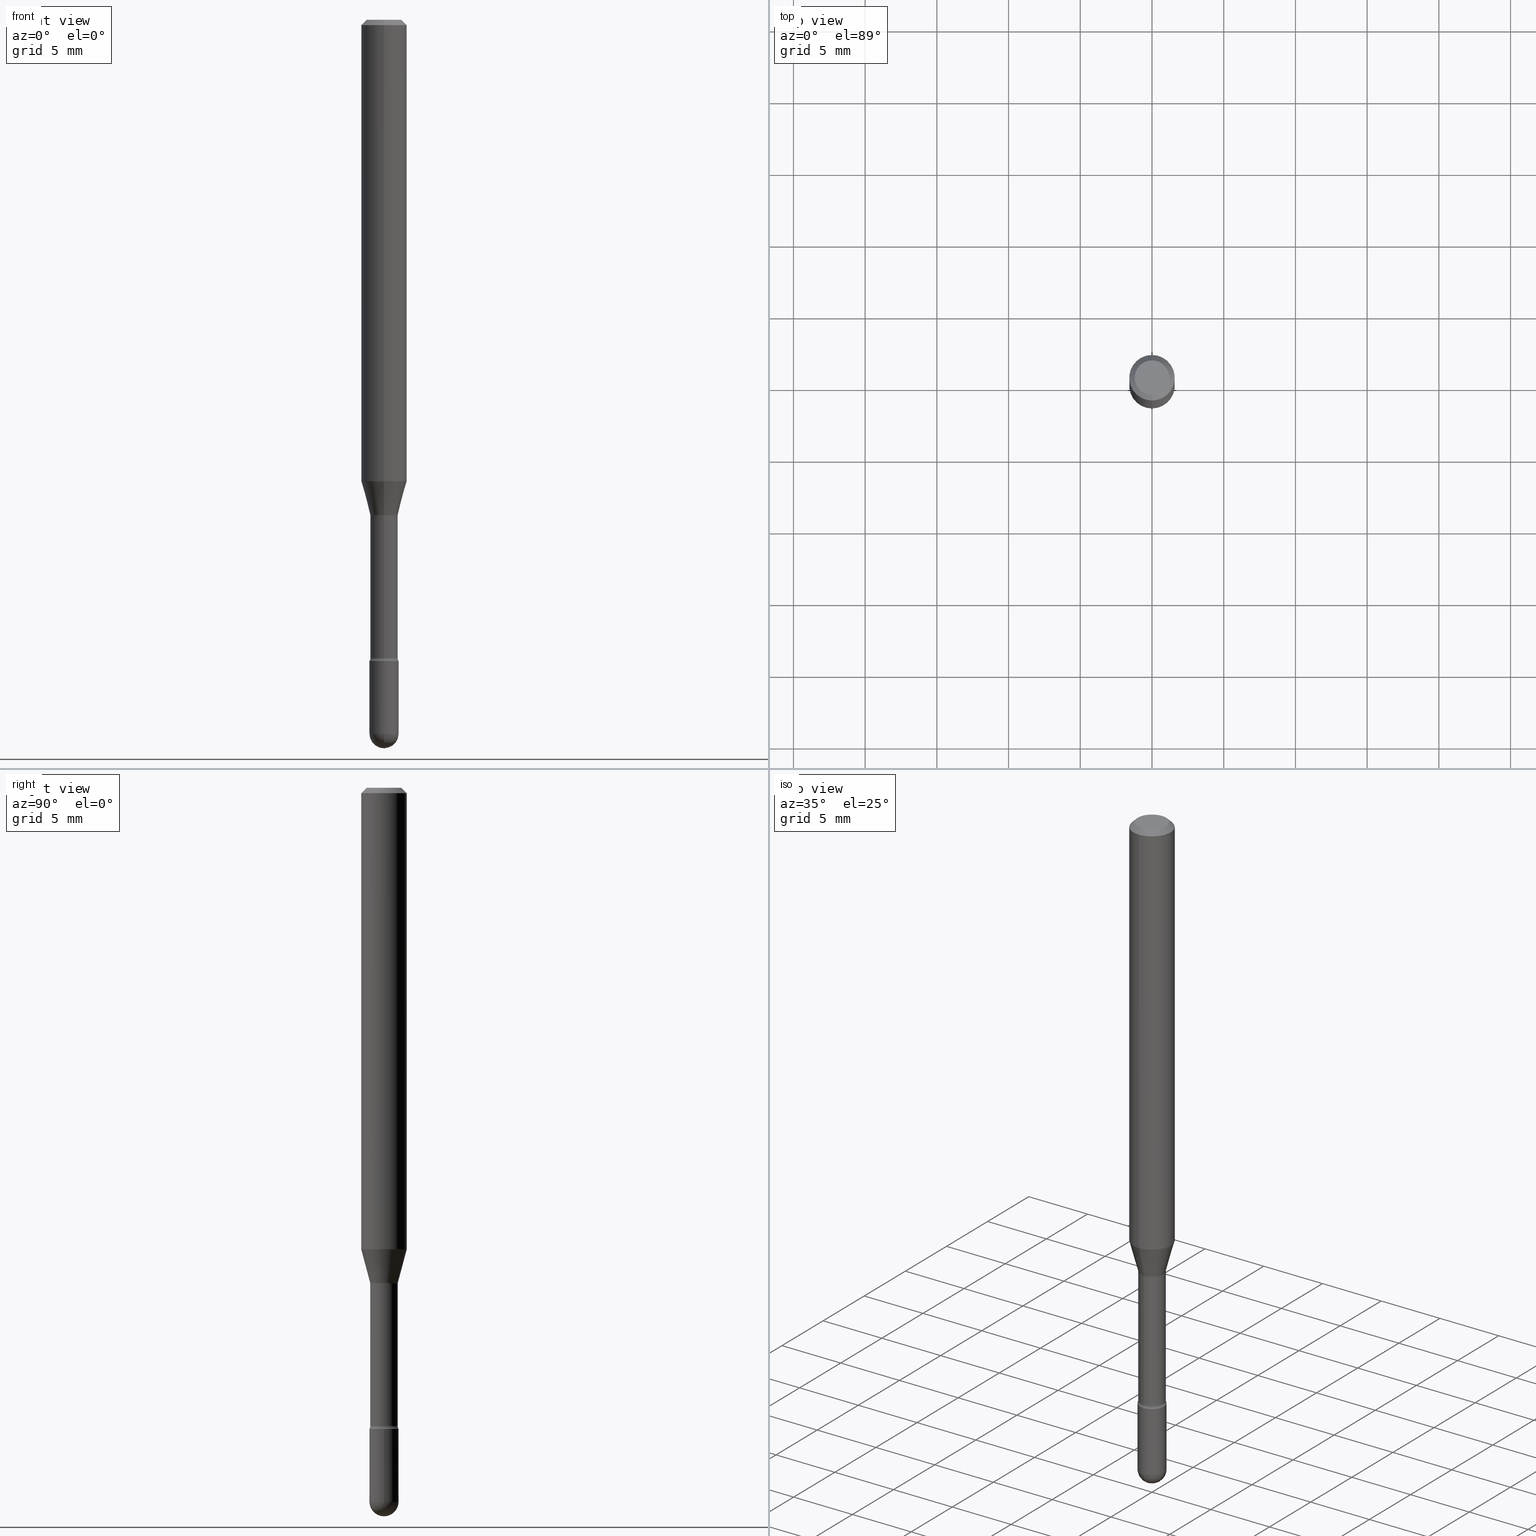
[diagram: canonical four-view strip — front | top / right | iso, engineering-drawing reading convention]
A machine part, canonical four-view strip (front | top / right | iso — engineering-drawing reading convention). The complete STEP part file that produces these views, byte-faithful:
ISO-10303-21;
HEADER;
FILE_DESCRIPTION (( 'STEP AP203' ),
    '1' );
FILE_NAME ('04556.STEP',
    '2024-04-09T21:53:44',
    ( '' ),
    ( '' ),
    'SwSTEP 2.0',
    'SolidWorks 2023',
    '' );
FILE_SCHEMA (( 'CONFIG_CONTROL_DESIGN' ));
ENDSEC;

DATA;
#1 = AXIS2_PLACEMENT_3D ( 'NONE', #375, #66, #20 ) ;
#2 = DIRECTION ( 'NONE',  ( -2.445468806185136597E-29, 3.491481338843145583E-15, 1.000000000000000000 ) ) ;
#3 = ORIENTED_EDGE ( 'NONE', *, *, #394, .T. ) ;
#4 = APPROVAL ( #424, 'UNSPECIFIED' ) ;
#5 = APPROVAL_DATE_TIME ( #391, #67 ) ;
#6 = DIRECTION ( 'NONE',  ( -6.982962677686265922E-15, -1.000000000000000000, 6.829619984160658243E-15 ) ) ;
#7 = ORIENTED_EDGE ( 'NONE', *, *, #396, .F. ) ;
#8 = DIRECTION ( 'NONE',  ( -2.445487129029545488E-29, 3.491455099487080109E-15, 1.000000000000000000 ) ) ;
#9 = EDGE_CURVE ( 'NONE', #51, #139, #204, .T. ) ;
#10 = DIRECTION ( 'NONE',  ( 6.982962677686265922E-15, 1.000000000000000000, -6.829619984160649566E-15 ) ) ;
#11 = VECTOR ( 'NONE', #192, 39.37007874015748143 ) ;
#12 = ORIENTED_EDGE ( 'NONE', *, *, #318, .T. ) ;
#13 = CARTESIAN_POINT ( 'NONE',  ( 4.440892098500937762E-16, 0.06249999999999993755, -0.01500000000000030129 ) ) ;
#14 = VECTOR ( 'NONE', #8, 39.37007874015748143 ) ;
#15 = ORIENTED_EDGE ( 'NONE', *, *, #109, .T. ) ;
#16 = FACE_OUTER_BOUND ( 'NONE', #376, .T. ) ;
#17 = EDGE_CURVE ( 'NONE', #18, #115, #228, .T. ) ;
#18 = VERTEX_POINT ( 'NONE', #257 ) ;
#19 = CIRCLE ( 'NONE', #459, 0.04000000000000000083 ) ;
#20 = DIRECTION ( 'NONE',  ( -6.982962677686267499E-15, -1.000000000000000000, 3.491455099487080898E-15 ) ) ;
#21 = CIRCLE ( 'NONE', #234, 0.03760000000000007087 ) ;
#22 = VERTEX_POINT ( 'NONE', #463 ) ;
#23 = ADVANCED_FACE ( 'NONE', ( #433 ), #302, .T. ) ;
#24 = CARTESIAN_POINT ( 'NONE',  ( -2.842170943039922556E-16, -0.04000000000000686340, -1.959999999999999520 ) ) ;
#25 = ORIENTED_EDGE ( 'NONE', *, *, #312, .T. ) ;
#26 = VECTOR ( 'NONE', #31, 39.37007874015748143 ) ;
#27 = CARTESIAN_POINT ( 'NONE',  ( -0.04000000000000000083, 2.842170943040400803E-16, -1.967574036101962509E-30 ) ) ;
#28 = VERTEX_POINT ( 'NONE', #218 ) ;
#29 = SECURITY_CLASSIFICATION ( '', '', #526 ) ;
#30 = MECHANICAL_CONTEXT ( 'NONE', #479, 'mechanical' ) ;
#31 = DIRECTION ( 'NONE',  ( -2.445487129029545488E-29, 3.491455099487080109E-15, 1.000000000000000000 ) ) ;
#32 = CALENDAR_DATE ( 2024, 9, 4 ) ;
#33 = DIRECTION ( 'NONE',  ( -2.445487129029545768E-29, 3.491455099487080109E-15, 1.000000000000000000 ) ) ;
#34 = CONICAL_SURFACE ( 'NONE', #361, 0.03811111260566397985, 0.2617993877991496299 ) ;
#35 = DIRECTION ( 'NONE',  ( -6.982962677686265922E-15, -1.000000000000000000, 0.000000000000000000 ) ) ;
#36 = EDGE_CURVE ( 'NONE', #70, #112, #142, .T. ) ;
#37 = CIRCLE ( 'NONE', #555, 0.03999999999999999389 ) ;
#38 = DIRECTION ( 'NONE',  ( -2.445487129029545768E-29, 3.491455099487080109E-15, 1.000000000000000000 ) ) ;
#39 = CARTESIAN_POINT ( 'NONE',  ( 0.000000000000000000, 0.000000000000000000, 0.000000000000000000 ) ) ;
#40 = PRODUCT_DEFINITION ( 'UNKNOWN', '', #304, #338 ) ;
#41 = DIRECTION ( 'NONE',  ( -2.445487129029545768E-29, 3.491455099487080109E-15, 1.000000000000000000 ) ) ;
#42 = CARTESIAN_POINT ( 'NONE',  ( 4.304025098885840590E-29, -6.145007156363937109E-15, -1.760000000000000009 ) ) ;
#43 = CIRCLE ( 'NONE', #238, 0.04000000000000004940 ) ;
#44 = CALENDAR_DATE ( 2024, 9, 4 ) ;
#45 = DIRECTION ( 'NONE',  ( -1.000000000000000000, 6.982962677686265922E-15, -4.883557194083112340E-29 ) ) ;
#46 = ADVANCED_FACE ( 'NONE', ( #259 ), #121, .T. ) ;
#47 = COORDINATED_UNIVERSAL_TIME_OFFSET ( 5, 0, .BEHIND. ) ;
#48 = LOCAL_TIME ( 17, 53, 44.00000000000000000, #268 ) ;
#49 = ADVANCED_FACE ( 'NONE', ( #508 ), #445, .F. ) ;
#50 = CARTESIAN_POINT ( 'NONE',  ( -4.287811248607203282E-16, -0.06250000000000005551, -0.01499999999999986587 ) ) ;
#51 = VERTEX_POINT ( 'NONE', #214 ) ;
#52 = AXIS2_PLACEMENT_3D ( 'NONE', #235, #116, #454 ) ;
#53 = CARTESIAN_POINT ( 'NONE',  ( 3.668230693544338848E-31, -5.237182649230648981E-17, -0.01500000000000008271 ) ) ;
#54 = EDGE_LOOP ( 'NONE', ( #73, #504, #240, #521 ) ) ;
#55 = CYLINDRICAL_SURFACE ( 'NONE', #291, 0.03760000000000003617 ) ;
#56 = EDGE_LOOP ( 'NONE', ( #287, #364, #155, #7 ) ) ;
#57 = FACE_OUTER_BOUND ( 'NONE', #320, .T. ) ;
#58 = APPROVAL_PERSON_ORGANIZATION ( #529, #501, #96 ) ;
#59 = CARTESIAN_POINT ( 'NONE',  ( 2.023686095412209919E-45, -2.888993543983221912E-31, -8.274827844095844307E-17 ) ) ;
#60 = CIRCLE ( 'NONE', #186, 0.01499999999999997689 ) ;
#61 = ORIENTED_EDGE ( 'NONE', *, *, #331, .F. ) ;
#62 = ADVANCED_FACE ( 'NONE', ( #465 ), #475, .F. ) ;
#63 = FACE_OUTER_BOUND ( 'NONE', #565, .T. ) ;
#64 = VERTEX_POINT ( 'NONE', #79 ) ;
#65 = CIRCLE ( 'NONE', #83, 0.01500000000000003587 ) ;
#66 = DIRECTION ( 'NONE',  ( -2.445487129029545768E-29, 3.491455099487080109E-15, 1.000000000000000000 ) ) ;
#67 = APPROVAL ( #472, 'UNSPECIFIED' ) ;
#68 = ORIENTED_EDGE ( 'NONE', *, *, #413, .F. ) ;
#69 = CARTESIAN_POINT ( 'NONE',  ( 3.316907271900976096E-16, 0.04749999999999999362, 3.181844299950747261E-17 ) ) ;
#70 = VERTEX_POINT ( 'NONE', #435 ) ;
#71 = ADVANCED_FACE ( 'NONE', ( #557 ), #516, .T. ) ;
#72 = LINE ( 'NONE', #245, #11 ) ;
#73 = ORIENTED_EDGE ( 'NONE', *, *, #197, .F. ) ;
#74 = AXIS2_PLACEMENT_3D ( 'NONE', #210, #386, #553 ) ;
#75 = CARTESIAN_POINT ( 'NONE',  ( 3.330666857553380876E-29, -4.755309554404755180E-15, -1.361974787463811065 ) ) ;
#76 = DIRECTION ( 'NONE',  ( -6.982962677686265922E-15, -1.000000000000000000, 4.370956789862821150E-15 ) ) ;
#77 = LOCAL_TIME ( 17, 53, 44.00000000000000000, #213 ) ;
#78 = FACE_OUTER_BOUND ( 'NONE', #461, .T. ) ;
#79 = CARTESIAN_POINT ( 'NONE',  ( -0.04000000000000000083, -6.209938195944210907E-15, -1.760000000000000009 ) ) ;
#80 = PERSON_AND_ORGANIZATION_ROLE ( 'design_owner' ) ;
#81 = DIRECTION ( 'NONE',  ( 6.982962677686265922E-15, 1.000000000000000000, -6.829619984160649566E-15 ) ) ;
#82 = CLOSED_SHELL ( 'NONE', ( #49, #170, #407, #294, #23, #227, #547, #505, #71, #343, #335, #62, #509, #554 ) ) ;
#83 = AXIS2_PLACEMENT_3D ( 'NONE', #277, #443, #447 ) ;
#84 = CARTESIAN_POINT ( 'NONE',  ( -2.625593966809703230E-16, -0.03760000000000476156, -1.361974787463811065 ) ) ;
#85 = EDGE_CURVE ( 'NONE', #22, #64, #533, .T. ) ;
#86 = CARTESIAN_POINT ( 'NONE',  ( 3.098608108331811398E-29, -4.423924768494011913E-15, -1.267071934891534912 ) ) ;
#87 = CIRCLE ( 'NONE', #426, 0.06250000000000000000 ) ;
#88 = PERSON_AND_ORGANIZATION ( #202, #104 ) ;
#89 = DIRECTION ( 'NONE',  ( 1.000000000000000000, -6.982962677686265922E-15, 4.876176775795935793E-29 ) ) ;
#90 = CIRCLE ( 'NONE', #161, 0.04000000000000000083 ) ;
#91 = EDGE_CURVE ( 'NONE', #51, #226, #359, .T. ) ;
#92 = PERSON_AND_ORGANIZATION ( #202, #104 ) ;
#93 = CARTESIAN_POINT ( 'NONE',  ( 4.440892098500932831E-16, 0.06249999999999554523, -1.267071934891535356 ) ) ;
#94 = VERTEX_POINT ( 'NONE', #342 ) ;
#95 = ADVANCED_FACE ( 'NONE', ( #262 ), #469, .T. ) ;
#96 = APPROVAL_ROLE ( '' ) ;
#97 = CARTESIAN_POINT ( 'NONE',  ( 4.304057347092000754E-29, -6.144960975097261213E-15, -1.760000000000000009 ) ) ;
#98 = PERSON_AND_ORGANIZATION ( #202, #104 ) ;
#99 = LINE ( 'NONE', #400, #14 ) ;
#100 = ORIENTED_EDGE ( 'NONE', *, *, #489, .T. ) ;
#101 = CARTESIAN_POINT ( 'NONE',  ( 4.304025098885840590E-29, -6.145007156363937109E-15, -1.760000000000000009 ) ) ;
#102 = EDGE_LOOP ( 'NONE', ( #105, #133, #329, #416 ) ) ;
#103 = CYLINDRICAL_SURFACE ( 'NONE', #263, 0.06250000000000000000 ) ;
#104 = ORGANIZATION ( 'UNSPECIFIED', 'UNSPECIFIED', '' ) ;
#105 = ORIENTED_EDGE ( 'NONE', *, *, #260, .F. ) ;
#106 = CARTESIAN_POINT ( 'NONE',  ( 3.668230693544338848E-31, -5.237182649230648981E-17, -0.01500000000000008271 ) ) ;
#107 = AXIS2_PLACEMENT_3D ( 'NONE', #106, #149, #326 ) ;
#108 = VERTEX_POINT ( 'NONE', #84 ) ;
#109 = EDGE_CURVE ( 'NONE', #483, #175, #561, .T. ) ;
#110 = AXIS2_PLACEMENT_3D ( 'NONE', #168, #562, #340 ) ;
#111 = CARTESIAN_POINT ( 'NONE',  ( -1.169113584055446105E-44, 1.669184350826100908E-30, 4.780733988912460139E-16 ) ) ;
#112 = VERTEX_POINT ( 'NONE', #171 ) ;
#113 = DIRECTION ( 'NONE',  ( -6.982962677686265922E-15, -1.000000000000000000, 3.491455099487080109E-15 ) ) ;
#114 = CC_DESIGN_SECURITY_CLASSIFICATION ( #29, ( #304 ) ) ;
#115 = VERTEX_POINT ( 'NONE', #393 ) ;
#116 = DIRECTION ( 'NONE',  ( 1.000000000000000000, -7.105427357601001070E-15, 4.926315187202648436E-29 ) ) ;
#117 = AXIS2_PLACEMENT_3D ( 'NONE', #380, #322, #279 ) ;
#118 = ORIENTED_EDGE ( 'NONE', *, *, #309, .T. ) ;
#119 = CARTESIAN_POINT ( 'NONE',  ( 4.793118860122867012E-29, -6.843303424132564569E-15, -1.959999999999999964 ) ) ;
#120 = DIRECTION ( 'NONE',  ( -2.445487129029545488E-29, 3.491455099487080109E-15, 1.000000000000000000 ) ) ;
#121 = SPHERICAL_SURFACE ( 'NONE', #321, 0.04000000000000004940 ) ;
#122 = CC_DESIGN_APPROVAL ( #67, ( #304 ) ) ;
#123 = EDGE_CURVE ( 'NONE', #226, #498, #560, .T. ) ;
#124 = CARTESIAN_POINT ( 'NONE',  ( -1.169113584055446105E-44, 1.669184350826100908E-30, 4.780733988912460139E-16 ) ) ;
#125 = CIRCLE ( 'NONE', #206, 0.04000000000000004940 ) ;
#126 = DIRECTION ( 'NONE',  ( 1.000000000000000000, -6.982962677686259611E-15, 0.000000000000000000 ) ) ;
#127 = APPLICATION_PROTOCOL_DEFINITION ( 'international standard', 'config_control_design', 1994, #479 ) ;
#128 = DIRECTION ( 'NONE',  ( -2.445487129029545768E-29, 3.491455099487080109E-15, 1.000000000000000000 ) ) ;
#129 = DIRECTION ( 'NONE',  ( -6.982962677686267499E-15, -1.000000000000000000, 0.000000000000000000 ) ) ;
#130 = EDGE_CURVE ( 'NONE', #150, #442, #169, .T. ) ;
#131 = DATE_AND_TIME ( #315, #48 ) ;
#132 = FACE_OUTER_BOUND ( 'NONE', #56, .T. ) ;
#133 = ORIENTED_EDGE ( 'NONE', *, *, #130, .F. ) ;
#134 = AXIS2_PLACEMENT_3D ( 'NONE', #297, #160, #166 ) ;
#135 = DIRECTION ( 'NONE',  ( -2.445487129029545488E-29, 3.491455099487080109E-15, 1.000000000000000000 ) ) ;
#136 = ORIENTED_EDGE ( 'NONE', *, *, #253, .T. ) ;
#137 = APPROVAL_ROLE ( '' ) ;
#138 = CARTESIAN_POINT ( 'NONE',  ( 4.304025098885840590E-29, -6.145007156363937109E-15, -1.760000000000000009 ) ) ;
#139 = VERTEX_POINT ( 'NONE', #518 ) ;
#140 = CARTESIAN_POINT ( 'NONE',  ( 4.793118860122867012E-29, -6.843303424132564569E-15, -1.959999999999999964 ) ) ;
#141 = ORIENTED_EDGE ( 'NONE', *, *, #189, .T. ) ;
#142 = CIRCLE ( 'NONE', #384, 0.03999999999999999389 ) ;
#143 = LINE ( 'NONE', #27, #355 ) ;
#144 = VERTEX_POINT ( 'NONE', #429 ) ;
#145 = FACE_OUTER_BOUND ( 'NONE', #534, .T. ) ;
#146 = EDGE_CURVE ( 'NONE', #401, #70, #420, .T. ) ;
#147 = VERTEX_POINT ( 'NONE', #511 ) ;
#148 = CC_DESIGN_PERSON_AND_ORGANIZATION_ASSIGNMENT ( #209, #385, ( #40 ) ) ;
#149 = DIRECTION ( 'NONE',  ( -2.445487129029545768E-29, 3.491455099487080109E-15, 1.000000000000000000 ) ) ;
#150 = VERTEX_POINT ( 'NONE', #232 ) ;
#151 = DIRECTION ( 'NONE',  ( -2.445487129029545768E-29, 3.491455099487080109E-15, 1.000000000000000000 ) ) ;
#152 = ORIENTED_EDGE ( 'NONE', *, *, #253, .F. ) ;
#153 = DIRECTION ( 'NONE',  ( -2.445487129029545768E-29, 3.491455099487080109E-15, 1.000000000000000000 ) ) ;
#154 = AXIS2_PLACEMENT_3D ( 'NONE', #339, #41, #552 ) ;
#155 = ORIENTED_EDGE ( 'NONE', *, *, #357, .T. ) ;
#156 = CC_DESIGN_PERSON_AND_ORGANIZATION_ASSIGNMENT ( #438, #219, ( #304 ) ) ;
#157 = CIRCLE ( 'NONE', #107, 0.06250000000000000000 ) ;
#158 = ORIENTED_EDGE ( 'NONE', *, *, #130, .T. ) ;
#159 =( CONVERSION_BASED_UNIT ( 'INCH', #346 ) LENGTH_UNIT ( ) NAMED_UNIT ( #440 ) );
#160 = DIRECTION ( 'NONE',  ( -2.445487129029545768E-29, 3.491455099487080109E-15, 1.000000000000000000 ) ) ;
#161 = AXIS2_PLACEMENT_3D ( 'NONE', #313, #271, #478 ) ;
#162 = DIRECTION ( 'NONE',  ( -1.000000000000000000, 6.982962677686265922E-15, -4.883557194083112340E-29 ) ) ;
#163 = AXIS2_PLACEMENT_3D ( 'NONE', #167, #387, #35 ) ;
#164 = ADVANCED_FACE ( 'NONE', ( #405 ), #363, .T. ) ;
#165 = PERSON_AND_ORGANIZATION ( #202, #104 ) ;
#166 = DIRECTION ( 'NONE',  ( -6.982962677686265922E-15, -1.000000000000000000, 3.491455099487080109E-15 ) ) ;
#167 = CARTESIAN_POINT ( 'NONE',  ( 3.330691812805500619E-29, -4.755273817063354605E-15, -1.361974787463811065 ) ) ;
#168 = CARTESIAN_POINT ( 'NONE',  ( 2.023686095412209919E-45, -2.888993543983221912E-31, -8.274827844095844307E-17 ) ) ;
#169 = CIRCLE ( 'NONE', #110, 0.04749999999999999362 ) ;
#170 = ADVANCED_FACE ( 'NONE', ( #177 ), #55, .T. ) ;
#171 = CARTESIAN_POINT ( 'NONE',  ( 2.793185071074987002E-16, 0.03999999999999317296, -1.960000000000000187 ) ) ;
#172 = CC_DESIGN_APPROVAL ( #4, ( #40 ) ) ;
#173 = APPROVAL_STATUS ( 'not_yet_approved' ) ;
#174 = DIRECTION ( 'NONE',  ( -4.851104656540964275E-15, -0.7071067811865500152, -0.7071067811865450192 ) ) ;
#175 = VERTEX_POINT ( 'NONE', #229 ) ;
#176 = APPROVAL_DATE_TIME ( #131, #501 ) ;
#177 = FACE_OUTER_BOUND ( 'NONE', #201, .T. ) ;
#178 = EDGE_CURVE ( 'NONE', #175, #108, #99, .T. ) ;
#179 = ORIENTED_EDGE ( 'NONE', *, *, #178, .T. ) ;
#180 = AXIS2_PLACEMENT_3D ( 'NONE', #39, #300, #255 ) ;
#181 = PERSON_AND_ORGANIZATION_ROLE ( 'classification_officer' ) ;
#182 = CARTESIAN_POINT ( 'NONE',  ( -3.673038368462551630E-16, -0.05260000000000616266, -1.751861204020249696 ) ) ;
#183 = EDGE_CURVE ( 'NONE', #147, #185, #90, .T. ) ;
#184 = DIRECTION ( 'NONE',  ( -1.807323732225325801E-15, -0.2588190451025175753, 0.9659258262890690894 ) ) ;
#185 = VERTEX_POINT ( 'NONE', #310 ) ;
#186 = AXIS2_PLACEMENT_3D ( 'NONE', #412, #460, #537 ) ;
#187 = LINE ( 'NONE', #481, #453 ) ;
#188 = EDGE_LOOP ( 'NONE', ( #490, #3, #118, #528 ) ) ;
#189 = EDGE_CURVE ( 'NONE', #115, #51, #187, .T. ) ;
#190 = FACE_OUTER_BOUND ( 'NONE', #448, .T. ) ;
#191 = ORIENTED_EDGE ( 'NONE', *, *, #189, .F. ) ;
#192 = DIRECTION ( 'NONE',  ( 4.937700262164548042E-15, 0.7071067811865451302, -0.7071067811865499042 ) ) ;
#193 = APPROVAL_PERSON_ORGANIZATION ( #92, #67, #137 ) ;
#194 = EDGE_LOOP ( 'NONE', ( #477, #136 ) ) ;
#195 = CARTESIAN_POINT ( 'NONE',  ( 3.668230693544338848E-31, -5.237182649230648981E-17, -0.01500000000000008271 ) ) ;
#196 = ORIENTED_EDGE ( 'NONE', *, *, #303, .F. ) ;
#197 = EDGE_CURVE ( 'NONE', #144, #112, #43, .T. ) ;
#198 = UNCERTAINTY_MEASURE_WITH_UNIT (LENGTH_MEASURE( 1.000000000000000082E-05 ), #159, 'distance_accuracy_value', 'NONE');
#199 = AXIS2_PLACEMENT_3D ( 'NONE', #124, #128, #298 ) ;
#200 = DIRECTION ( 'NONE',  ( -2.445487129029545768E-29, 3.491455099487080109E-15, 1.000000000000000000 ) ) ;
#201 = EDGE_LOOP ( 'NONE', ( #502, #404, #290, #221 ) ) ;
#202 = PERSON ( 'UNSPECIFIED', 'UNSPECIFIED', 'UNSPECIFIED', ('UNSPECIFIED'), ('UNSPECIFIED'), ('UNSPECIFIED') ) ;
#203 = DIRECTION ( 'NONE',  ( -6.982962677686266711E-15, -1.000000000000000000, 0.000000000000000000 ) ) ;
#204 = LINE ( 'NONE', #337, #403 ) ;
#205 = DIRECTION ( 'NONE',  ( -2.445487129029545768E-29, 3.491455099487080109E-15, 1.000000000000000000 ) ) ;
#206 = AXIS2_PLACEMENT_3D ( 'NONE', #289, #488, #242 ) ;
#207 = CARTESIAN_POINT ( 'NONE',  ( 4.793118860122867012E-29, -6.843303424132564569E-15, -1.959999999999999964 ) ) ;
#208 = CIRCLE ( 'NONE', #515, 0.04749999999999999362 ) ;
#209 = PERSON_AND_ORGANIZATION ( #202, #104 ) ;
#210 = CARTESIAN_POINT ( 'NONE',  ( 4.793118860122867012E-29, -6.843303424132564569E-15, -1.959999999999999964 ) ) ;
#211 = CIRCLE ( 'NONE', #522, 0.03999999999999999389 ) ;
#212 = EDGE_CURVE ( 'NONE', #94, #401, #211, .T. ) ;
#213 = COORDINATED_UNIVERSAL_TIME_OFFSET ( 5, 0, .BEHIND. ) ;
#214 = CARTESIAN_POINT ( 'NONE',  ( -4.364351673553609038E-16, -0.06250000000000446865, -1.267071934891534690 ) ) ;
#215 = COORDINATED_UNIVERSAL_TIME_OFFSET ( 5, 0, .BEHIND. ) ;
#216 = DIRECTION ( 'NONE',  ( -2.445487129029545768E-29, 3.491455099487080109E-15, 1.000000000000000000 ) ) ;
#217 =( NAMED_UNIT ( * ) SI_UNIT ( $, .STERADIAN. ) SOLID_ANGLE_UNIT ( ) );
#218 = CARTESIAN_POINT ( 'NONE',  ( 2.671640686458407226E-16, 0.03759999999999524833, -1.361974787463811065 ) ) ;
#219 = PERSON_AND_ORGANIZATION_ROLE ( 'design_supplier' ) ;
#220 = DIRECTION ( 'NONE',  ( -2.445487129029545768E-29, 3.491455099487080109E-15, 1.000000000000000000 ) ) ;
#221 = ORIENTED_EDGE ( 'NONE', *, *, #178, .F. ) ;
#222 = AXIS2_PLACEMENT_3D ( 'NONE', #267, #353, #89 ) ;
#223 = LINE ( 'NONE', #523, #519 ) ;
#224 = VECTOR ( 'NONE', #503, 39.37007874015748143 ) ;
#225 = DIRECTION ( 'NONE',  ( -6.982962677686267499E-15, -1.000000000000000000, 3.491455099487080898E-15 ) ) ;
#226 = VERTEX_POINT ( 'NONE', #93 ) ;
#227 = ADVANCED_FACE ( 'NONE', ( #485 ), #34, .T. ) ;
#228 = CIRCLE ( 'NONE', #377, 0.03811111260566397985 ) ;
#229 = CARTESIAN_POINT ( 'NONE',  ( -2.625593966809612511E-16, -0.03760000000000619097, -1.751861204020249918 ) ) ;
#230 = ORIENTED_EDGE ( 'NONE', *, *, #551, .T. ) ;
#231 = LOCAL_TIME ( 17, 53, 44.00000000000000000, #47 ) ;
#232 = CARTESIAN_POINT ( 'NONE',  ( 3.840629472727447874E-16, 0.04749999999999999362, -2.485923956665947374E-16 ) ) ;
#233 = ADVANCED_FACE ( 'NONE', ( #397 ), #358, .T. ) ;
#234 = AXIS2_PLACEMENT_3D ( 'NONE', #389, #205, #251 ) ;
#235 = CARTESIAN_POINT ( 'NONE',  ( 3.737454790098459844E-16, 0.05259999999999525472, -1.361974787463811287 ) ) ;
#236 = DIRECTION ( 'NONE',  ( -2.445487129029545768E-29, 3.491455099487080109E-15, 1.000000000000000000 ) ) ;
#237 = MANIFOLD_SOLID_BREP ( 'Body-Move/Copy2[1]', #369 ) ;
#238 = AXIS2_PLACEMENT_3D ( 'NONE', #408, #368, #530 ) ;
#239 = DIRECTION ( 'NONE',  ( -2.445487129029545488E-29, 3.491455099487080109E-15, 1.000000000000000000 ) ) ;
#240 = ORIENTED_EDGE ( 'NONE', *, *, #212, .F. ) ;
#241 = CIRCLE ( 'NONE', #163, 0.03760000000000000842 ) ;
#242 = DIRECTION ( 'NONE',  ( -7.105427357601000281E-15, -1.000000000000000000, 0.000000000000000000 ) ) ;
#243 = TOROIDAL_SURFACE ( 'NONE', #330, 0.05260000000000000786, 0.01500000000000003240 ) ;
#244 = EDGE_LOOP ( 'NONE', ( #455, #450, #492, #191 ) ) ;
#245 = CARTESIAN_POINT ( 'NONE',  ( 4.364351673553919652E-16, 0.06249999999999995143, -0.01500000000000030129 ) ) ;
#246 = ORIENTED_EDGE ( 'NONE', *, *, #394, .F. ) ;
#247 = CC_DESIGN_DATE_AND_TIME_ASSIGNMENT ( #563, #399, ( #29 ) ) ;
#248 = AXIS2_PLACEMENT_3D ( 'NONE', #517, #252, #425 ) ;
#249 = CARTESIAN_POINT ( 'NONE',  ( 4.284121927197456483E-29, -6.116590702079987313E-15, -1.751861204020249918 ) ) ;
#250 = ORIENTED_EDGE ( 'NONE', *, *, #197, .T. ) ;
#251 = DIRECTION ( 'NONE',  ( -6.982962677686267499E-15, -1.000000000000000000, 0.000000000000000000 ) ) ;
#252 = DIRECTION ( 'NONE',  ( -2.445487129029545768E-29, 3.491455099487080109E-15, 1.000000000000000000 ) ) ;
#253 = EDGE_CURVE ( 'NONE', #64, #22, #430, .T. ) ;
#254 = PERSON_AND_ORGANIZATION ( #202, #104 ) ;
#255 = DIRECTION ( 'NONE',  ( 1.000000000000000000, -6.982962677686265922E-15, 4.876176775795935793E-29 ) ) ;
#256 = DIRECTION ( 'NONE',  ( -6.982962677686265922E-15, -1.000000000000000000, 0.000000000000000000 ) ) ;
#257 = CARTESIAN_POINT ( 'NONE',  ( 3.574424759935120767E-16, 0.03811111260565923364, -1.358092501787273143 ) ) ;
#258 = DIRECTION ( 'NONE',  ( 1.000000000000000000, -6.982962677686260400E-15, 0.000000000000000000 ) ) ;
#259 = FACE_OUTER_BOUND ( 'NONE', #539, .T. ) ;
#260 = EDGE_CURVE ( 'NONE', #442, #139, #527, .T. ) ;
#261 =( LENGTH_UNIT ( ) NAMED_UNIT ( * ) SI_UNIT ( $, .METRE. ) );
#262 = FACE_OUTER_BOUND ( 'NONE', #536, .T. ) ;
#263 = AXIS2_PLACEMENT_3D ( 'NONE', #111, #494, #284 ) ;
#264 = EDGE_CURVE ( 'NONE', #115, #108, #65, .T. ) ;
#265 = AXIS2_PLACEMENT_3D ( 'NONE', #418, #239, #113 ) ;
#266 = PERSON_AND_ORGANIZATION_ROLE ( 'creator' ) ;
#267 = CARTESIAN_POINT ( 'NONE',  ( 0.000000000000000000, 0.000000000000000000, 0.000000000000000000 ) ) ;
#268 = COORDINATED_UNIVERSAL_TIME_OFFSET ( 5, 0, .BEHIND. ) ;
#269 = DIRECTION ( 'NONE',  ( 2.445487129029545768E-29, -3.491455099487080109E-15, -1.000000000000000000 ) ) ;
#270 = CONICAL_SURFACE ( 'NONE', #365, 0.06250000000000000000, 0.7853981633974483900 ) ;
#271 = DIRECTION ( 'NONE',  ( -2.445487129029545768E-29, 3.491455099487080109E-15, 1.000000000000000000 ) ) ;
#272 = ORIENTED_EDGE ( 'NONE', *, *, #371, .F. ) ;
#273 = AXIS2_PLACEMENT_3D ( 'NONE', #421, #151, #324 ) ;
#274 = DIRECTION ( 'NONE',  ( -2.445487129029545768E-29, 3.491455099487080109E-15, 1.000000000000000000 ) ) ;
#275 = ORIENTED_EDGE ( 'NONE', *, *, #9, .T. ) ;
#276 = AXIS2_PLACEMENT_3D ( 'NONE', #86, #33, #76 ) ;
#277 = CARTESIAN_POINT ( 'NONE',  ( -3.673038368462643828E-16, -0.05260000000000476100, -1.361974787463810621 ) ) ;
#278 = ORIENTED_EDGE ( 'NONE', *, *, #183, .T. ) ;
#279 = DIRECTION ( 'NONE',  ( -6.982962677686265922E-15, -1.000000000000000000, 0.000000000000000000 ) ) ;
#280 = ORIENTED_EDGE ( 'NONE', *, *, #17, .T. ) ;
#281 = CYLINDRICAL_SURFACE ( 'NONE', #1, 0.03760000000000003617 ) ;
#282 = ORIENTED_EDGE ( 'NONE', *, *, #437, .T. ) ;
#283 = AXIS2_PLACEMENT_3D ( 'NONE', #101, #473, #439 ) ;
#284 = DIRECTION ( 'NONE',  ( -6.982962677686265922E-15, -1.000000000000000000, 3.491455099487080503E-15 ) ) ;
#285 = ORIENTED_EDGE ( 'NONE', *, *, #212, .T. ) ;
#286 = PLANE ( 'NONE',  #265 ) ;
#287 = ORIENTED_EDGE ( 'NONE', *, *, #318, .F. ) ;
#288 = AXIS2_PLACEMENT_3D ( 'NONE', #249, #544, #500 ) ;
#289 = CARTESIAN_POINT ( 'NONE',  ( 4.793118860122867012E-29, -6.843303424132564569E-15, -1.959999999999999964 ) ) ;
#290 = ORIENTED_EDGE ( 'NONE', *, *, #551, .F. ) ;
#291 = AXIS2_PLACEMENT_3D ( 'NONE', #316, #274, #225 ) ;
#292 = CARTESIAN_POINT ( 'NONE',  ( 3.321197733152312040E-29, -4.741718990940341378E-15, -1.358092501787273143 ) ) ;
#293 = ADVANCED_FACE ( 'NONE', ( #57 ), #532, .T. ) ;
#294 = ADVANCED_FACE ( 'NONE', ( #132 ), #270, .T. ) ;
#295 = FACE_OUTER_BOUND ( 'NONE', #374, .T. ) ;
#296 = CONICAL_SURFACE ( 'NONE', #154, 0.03811111260566397985, 0.2617993877991496299 ) ;
#297 = CARTESIAN_POINT ( 'NONE',  ( 4.284121927197456483E-29, -6.116590702079987313E-15, -1.751861204020249918 ) ) ;
#298 = DIRECTION ( 'NONE',  ( -6.982962677686265922E-15, -1.000000000000000000, 3.491455099487080503E-15 ) ) ;
#299 = DIRECTION ( 'NONE',  ( 1.000000000000000000, 0.000000000000000000, 0.000000000000000000 ) ) ;
#300 = DIRECTION ( 'NONE',  ( -2.445468806185136597E-29, 3.491481338843145583E-15, 1.000000000000000000 ) ) ;
#301 = APPROVAL_DATE_TIME ( #431, #4 ) ;
#302 = CYLINDRICAL_SURFACE ( 'NONE', #199, 0.06250000000000000000 ) ;
#303 = EDGE_CURVE ( 'NONE', #483, #28, #223, .T. ) ;
#304 = PRODUCT_DEFINITION_FORMATION_WITH_SPECIFIED_SOURCE ( 'ANY', '', #307, .NOT_KNOWN. ) ;
#305 = DATE_TIME_ROLE ( 'creation_date' ) ;
#306 = CARTESIAN_POINT ( 'NONE',  ( 3.321197733152312040E-29, -4.741718990940341378E-15, -1.358092501787273143 ) ) ;
#307 = PRODUCT ( '04556', '04556', '', ( #30 ) ) ;
#308 = CIRCLE ( 'NONE', #52, 0.01500000000000003587 ) ;
#309 = EDGE_CURVE ( 'NONE', #185, #147, #19, .T. ) ;
#310 = CARTESIAN_POINT ( 'NONE',  ( 2.842170943040830239E-16, 0.03999999999999385297, -1.760000000000000453 ) ) ;
#311 = ORIENTED_EDGE ( 'NONE', *, *, #123, .T. ) ;
#312 = EDGE_CURVE ( 'NONE', #175, #147, #417, .T. ) ;
#313 = CARTESIAN_POINT ( 'NONE',  ( 4.304057347092000754E-29, -6.144960975097261213E-15, -1.760000000000000009 ) ) ;
#314 = EDGE_LOOP ( 'NONE', ( #378, #311, #531, #542 ) ) ;
#315 = CALENDAR_DATE ( 2024, 9, 4 ) ;
#316 = CARTESIAN_POINT ( 'NONE',  ( -1.169113584055446105E-44, 1.669184350826100908E-30, 4.780733988912460139E-16 ) ) ;
#317 = ORIENTED_EDGE ( 'NONE', *, *, #36, .F. ) ;
#318 = EDGE_CURVE ( 'NONE', #442, #150, #208, .T. ) ;
#319 = DIRECTION ( 'NONE',  ( 1.000000000000000000, -6.982962677686260400E-15, 0.000000000000000000 ) ) ;
#320 = EDGE_LOOP ( 'NONE', ( #360, #285, #367, #444, #152 ) ) ;
#321 = AXIS2_PLACEMENT_3D ( 'NONE', #467, #162, #81 ) ;
#322 = DIRECTION ( 'NONE',  ( -2.445487129029545768E-29, 3.491455099487080109E-15, 1.000000000000000000 ) ) ;
#323 = ORIENTED_EDGE ( 'NONE', *, *, #543, .F. ) ;
#324 = DIRECTION ( 'NONE',  ( -6.982962677686265922E-15, -1.000000000000000000, 4.370956789862821150E-15 ) ) ;
#325 = ORIENTED_EDGE ( 'NONE', *, *, #36, .T. ) ;
#326 = DIRECTION ( 'NONE',  ( -6.982962677686265922E-15, -1.000000000000000000, 3.483106191921935554E-15 ) ) ;
#327 = ORIENTED_EDGE ( 'NONE', *, *, #489, .F. ) ;
#328 = FACE_OUTER_BOUND ( 'NONE', #188, .T. ) ;
#329 = ORIENTED_EDGE ( 'NONE', *, *, #396, .T. ) ;
#330 = AXIS2_PLACEMENT_3D ( 'NONE', #75, #556, #470 ) ;
#331 = EDGE_CURVE ( 'NONE', #18, #226, #332, .T. ) ;
#332 = LINE ( 'NONE', #409, #484 ) ;
#333 = ORIENTED_EDGE ( 'NONE', *, *, #462, .F. ) ;
#334 = DIRECTION ( 'NONE',  ( -2.445468806185136597E-29, 3.491481338843145583E-15, 1.000000000000000000 ) ) ;
#335 = ADVANCED_FACE ( 'NONE', ( #145 ), #286, .F. ) ;
#336 = AXIS2_PLACEMENT_3D ( 'NONE', #69, #541, #535 ) ;
#337 = CARTESIAN_POINT ( 'NONE',  ( -4.364351673553916201E-16, -0.06250000000000000000, 6.962893426091885454E-16 ) ) ;
#338 = DESIGN_CONTEXT ( 'detailed design', #351, 'design' ) ;
#339 = CARTESIAN_POINT ( 'NONE',  ( 3.321197733152312040E-29, -4.741718990940341378E-15, -1.358092501787273143 ) ) ;
#340 = DIRECTION ( 'NONE',  ( -6.982962677686266711E-15, -1.000000000000000000, 3.491455099487080898E-15 ) ) ;
#341 = CARTESIAN_POINT ( 'NONE',  ( 0.000000000000000000, 0.000000000000000000, 0.000000000000000000 ) ) ;
#342 = CARTESIAN_POINT ( 'NONE',  ( -0.03999999999999999389, -6.209938195944210907E-15, -1.959999999999999964 ) ) ;
#343 = ADVANCED_FACE ( 'NONE', ( #16 ), #370, .F. ) ;
#344 = DIRECTION ( 'NONE',  ( 2.445487129029545768E-29, -3.491455099487080109E-15, -1.000000000000000000 ) ) ;
#345 = CC_DESIGN_PERSON_AND_ORGANIZATION_ASSIGNMENT ( #88, #266, ( #304 ) ) ;
#346 = LENGTH_MEASURE_WITH_UNIT ( LENGTH_MEASURE( 0.02539999999999999897 ), #261 );
#347 = AXIS2_PLACEMENT_3D ( 'NONE', #350, #216, #129 ) ;
#348 = DIRECTION ( 'NONE',  ( -2.445468806185136597E-29, 3.491481338843145583E-15, 1.000000000000000000 ) ) ;
#349 = DATE_AND_TIME ( #44, #77 ) ;
#350 = CARTESIAN_POINT ( 'NONE',  ( 4.284154026277723862E-29, -6.116544734370077730E-15, -1.751861204020249918 ) ) ;
#351 = APPLICATION_CONTEXT ( 'configuration controlled 3d designs of mechanical parts and assemblies' ) ;
#352 = LOCAL_TIME ( 17, 53, 44.00000000000000000, #362 ) ;
#353 = DIRECTION ( 'NONE',  ( -2.445468806185136597E-29, 3.491481338843145583E-15, 1.000000000000000000 ) ) ;
#354 = PRODUCT_DEFINITION_SHAPE ( 'NONE', 'NONE',  #40 ) ;
#355 = VECTOR ( 'NONE', #491, 39.37007874015748143 ) ;
#356 = ORIENTED_EDGE ( 'NONE', *, *, #371, .T. ) ;
#357 = EDGE_CURVE ( 'NONE', #139, #498, #87, .T. ) ;
#358 = PLANE ( 'NONE',  #283 ) ;
#359 = CIRCLE ( 'NONE', #276, 0.06250000000000000000 ) ;
#360 = ORIENTED_EDGE ( 'NONE', *, *, #437, .F. ) ;
#361 = AXIS2_PLACEMENT_3D ( 'NONE', #306, #220, #476 ) ;
#362 = COORDINATED_UNIVERSAL_TIME_OFFSET ( 5, 0, .BEHIND. ) ;
#363 = SPHERICAL_SURFACE ( 'NONE', #392, 0.04000000000000004940 ) ;
#364 = ORIENTED_EDGE ( 'NONE', *, *, #260, .T. ) ;
#365 = AXIS2_PLACEMENT_3D ( 'NONE', #53, #269, #441 ) ;
#366 = CARTESIAN_POINT ( 'NONE',  ( 4.793118860122867012E-29, -6.843303424132564569E-15, -1.959999999999999964 ) ) ;
#367 = ORIENTED_EDGE ( 'NONE', *, *, #146, .T. ) ;
#368 = DIRECTION ( 'NONE',  ( 1.000000000000000000, -6.982962677686265922E-15, 4.883557194083112340E-29 ) ) ;
#369 = CLOSED_SHELL ( 'NONE', ( #95, #164, #233, #46, #293 ) ) ;
#370 = PLANE ( 'NONE',  #336 ) ;
#371 = EDGE_CURVE ( 'NONE', #18, #28, #308, .T. ) ;
#372 = DIRECTION ( 'NONE',  ( -6.982962677686265922E-15, -1.000000000000000000, 0.000000000000000000 ) ) ;
#373 = DIRECTION ( 'NONE',  ( -6.982962677686266711E-15, -1.000000000000000000, 3.491455099487080898E-15 ) ) ;
#374 = EDGE_LOOP ( 'NONE', ( #61, #280, #141, #68 ) ) ;
#375 = CARTESIAN_POINT ( 'NONE',  ( -1.169113584055446105E-44, 1.669184350826100908E-30, 4.780733988912460139E-16 ) ) ;
#376 = EDGE_LOOP ( 'NONE', ( #158, #12 ) ) ;
#377 = AXIS2_PLACEMENT_3D ( 'NONE', #292, #236, #372 ) ;
#378 = ORIENTED_EDGE ( 'NONE', *, *, #91, .T. ) ;
#379 = APPROVAL_PERSON_ORGANIZATION ( #254, #4, #427 ) ;
#380 = CARTESIAN_POINT ( 'NONE',  ( 3.330691812805500619E-29, -4.755273817063354605E-15, -1.361974787463811065 ) ) ;
#381 = ORIENTED_EDGE ( 'NONE', *, *, #309, .F. ) ;
#382 = CIRCLE ( 'NONE', #559, 0.03811111260566397985 ) ;
#383 = DIRECTION ( 'NONE',  ( -2.445468806185136597E-29, 3.491481338843145583E-15, 1.000000000000000000 ) ) ;
#384 = AXIS2_PLACEMENT_3D ( 'NONE', #207, #383, #471 ) ;
#385 = PERSON_AND_ORGANIZATION_ROLE ( 'creator' ) ;
#386 = DIRECTION ( 'NONE',  ( -2.445468806185136597E-29, 3.491481338843145583E-15, 1.000000000000000000 ) ) ;
#387 = DIRECTION ( 'NONE',  ( -2.445487129029545768E-29, 3.491455099487080109E-15, 1.000000000000000000 ) ) ;
#388 = CC_DESIGN_PERSON_AND_ORGANIZATION_ASSIGNMENT ( #165, #80, ( #307 ) ) ;
#389 = CARTESIAN_POINT ( 'NONE',  ( 4.284154026277723862E-29, -6.116544734370077730E-15, -1.751861204020249918 ) ) ;
#390 = CARTESIAN_POINT ( 'NONE',  ( 4.440892098500625669E-16, 0.06250000000000000000, 2.598574551733035811E-16 ) ) ;
#391 = DATE_AND_TIME ( #566, #352 ) ;
#392 = AXIS2_PLACEMENT_3D ( 'NONE', #366, #45, #10 ) ;
#393 = CARTESIAN_POINT ( 'NONE',  ( -2.661284769304169615E-16, -0.03811111260566871911, -1.358092501787273143 ) ) ;
#394 = EDGE_CURVE ( 'NONE', #483, #185, #60, .T. ) ;
#395 = CALENDAR_DATE ( 2024, 9, 4 ) ;
#396 = EDGE_CURVE ( 'NONE', #150, #498, #72, .T. ) ;
#397 = FACE_OUTER_BOUND ( 'NONE', #194, .T. ) ;
#398 = ORIENTED_EDGE ( 'NONE', *, *, #525, .F. ) ;
#399 = DATE_TIME_ROLE ( 'classification_date' ) ;
#400 = CARTESIAN_POINT ( 'NONE',  ( -2.625593966810038989E-16, -0.03760000000000003617, 6.093521106319604609E-16 ) ) ;
#401 = VERTEX_POINT ( 'NONE', #24 ) ;
#402 = DIRECTION ( 'NONE',  ( -2.445487129029545768E-29, 3.491455099487080109E-15, 1.000000000000000000 ) ) ;
#403 = VECTOR ( 'NONE', #120, 39.37007874015748143 ) ;
#404 = ORIENTED_EDGE ( 'NONE', *, *, #303, .T. ) ;
#405 = FACE_OUTER_BOUND ( 'NONE', #54, .T. ) ;
#406 = ORIENTED_EDGE ( 'NONE', *, *, #17, .F. ) ;
#407 = ADVANCED_FACE ( 'NONE', ( #328 ), #493, .F. ) ;
#408 = CARTESIAN_POINT ( 'NONE',  ( 4.793118860122867012E-29, -6.843303424132564569E-15, -1.959999999999999964 ) ) ;
#409 = CARTESIAN_POINT ( 'NONE',  ( 2.707957421369304265E-16, 0.03811111260565923364, -1.358092501787273143 ) ) ;
#410 = ORIENTED_EDGE ( 'NONE', *, *, #411, .F. ) ;
#411 = EDGE_CURVE ( 'NONE', #144, #401, #125, .T. ) ;
#412 = CARTESIAN_POINT ( 'NONE',  ( 3.737454790098557958E-16, 0.05259999999999393633, -1.751861204020250140 ) ) ;
#413 = EDGE_CURVE ( 'NONE', #226, #51, #512, .T. ) ;
#414 = ORIENTED_EDGE ( 'NONE', *, *, #123, .F. ) ;
#415 = CARTESIAN_POINT ( 'NONE',  ( -3.773273898774340269E-16, -0.04749999999999999362, 8.309583878467786358E-17 ) ) ;
#416 = ORIENTED_EDGE ( 'NONE', *, *, #462, .T. ) ;
#417 = CIRCLE ( 'NONE', #540, 0.01499999999999997689 ) ;
#418 = CARTESIAN_POINT ( 'NONE',  ( 2.793185071074937205E-16, 0.03999999999999385297, -1.760000000000000453 ) ) ;
#419 = ORIENTED_EDGE ( 'NONE', *, *, #146, .F. ) ;
#420 = CIRCLE ( 'NONE', #74, 0.03999999999999999389 ) ;
#421 = CARTESIAN_POINT ( 'NONE',  ( 3.098608108331811398E-29, -4.423924768494011913E-15, -1.267071934891534912 ) ) ;
#422 = ORIENTED_EDGE ( 'NONE', *, *, #183, .F. ) ;
#423 = AXIS2_PLACEMENT_3D ( 'NONE', #341, #468, #299 ) ;
#424 = APPROVAL_STATUS ( 'not_yet_approved' ) ;
#425 = DIRECTION ( 'NONE',  ( -6.982962677686265922E-15, -1.000000000000000000, 3.491455099487080109E-15 ) ) ;
#426 = AXIS2_PLACEMENT_3D ( 'NONE', #195, #200, #449 ) ;
#427 = APPROVAL_ROLE ( '' ) ;
#428 = MANIFOLD_SOLID_BREP ( 'Body-Move/Copy2[2]', #82 ) ;
#429 = CARTESIAN_POINT ( 'NONE',  ( 4.892647944948631410E-29, -6.980513384087995232E-15, -2.000000000000000000 ) ) ;
#430 = CIRCLE ( 'NONE', #496, 0.04000000000000000083 ) ;
#431 = DATE_AND_TIME ( #32, #499 ) ;
#432 = VECTOR ( 'NONE', #174, 39.37007874015748143 ) ;
#433 = FACE_OUTER_BOUND ( 'NONE', #314, .T. ) ;
#434 = APPLICATION_PROTOCOL_DEFINITION ( 'international standard', 'config_control_design', 1994, #351 ) ;
#435 = CARTESIAN_POINT ( 'NONE',  ( 0.03999999999999999389, -6.773473797355701271E-15, -1.959999999999999964 ) ) ;
#436 = CARTESIAN_POINT ( 'NONE',  ( 3.668230693544338848E-31, -5.237182649230648981E-17, -0.01500000000000008271 ) ) ;
#437 = EDGE_CURVE ( 'NONE', #94, #64, #143, .T. ) ;
#438 = PERSON_AND_ORGANIZATION ( #202, #104 ) ;
#439 = DIRECTION ( 'NONE',  ( 1.000000000000000000, -6.982962677686265922E-15, 4.876176775795935793E-29 ) ) ;
#440 = DIMENSIONAL_EXPONENTS ( 1.000000000000000000, 0.000000000000000000, 0.000000000000000000, 0.000000000000000000, 0.000000000000000000, 0.000000000000000000, 0.000000000000000000 ) ;
#441 = DIRECTION ( 'NONE',  ( 6.982962677686265922E-15, 1.000000000000000000, -3.483106191921935554E-15 ) ) ;
#442 = VERTEX_POINT ( 'NONE', #415 ) ;
#443 = DIRECTION ( 'NONE',  ( -1.000000000000000000, 6.982962677686265922E-15, -4.883557194083112340E-29 ) ) ;
#444 = ORIENTED_EDGE ( 'NONE', *, *, #525, .T. ) ;
#445 = TOROIDAL_SURFACE ( 'NONE', #248, 0.05260000000000000786, 0.01500000000000003240 ) ;
#446 = EDGE_LOOP ( 'NONE', ( #246, #323, #25, #278 ) ) ;
#447 = DIRECTION ( 'NONE',  ( -6.982962677686263555E-15, -1.000000000000000000, 0.000000000000000000 ) ) ;
#448 = EDGE_LOOP ( 'NONE', ( #196, #15, #179, #327 ) ) ;
#449 = DIRECTION ( 'NONE',  ( -6.982962677686265922E-15, -1.000000000000000000, 3.483106191921935554E-15 ) ) ;
#450 = ORIENTED_EDGE ( 'NONE', *, *, #331, .T. ) ;
#451 = CARTESIAN_POINT ( 'NONE',  ( 2.756905814749619718E-16, 0.03759999999999395770, -1.751861204020249918 ) ) ;
#452 = ORIENTED_EDGE ( 'NONE', *, *, #413, .T. ) ;
#453 = VECTOR ( 'NONE', #184, 39.37007874015748854 ) ;
#454 = DIRECTION ( 'NONE',  ( 7.105427357600997914E-15, 1.000000000000000000, 0.000000000000000000 ) ) ;
#455 = ORIENTED_EDGE ( 'NONE', *, *, #513, .T. ) ;
#456 =( GEOMETRIC_REPRESENTATION_CONTEXT ( 3 ) GLOBAL_UNCERTAINTY_ASSIGNED_CONTEXT ( ( #198 ) ) GLOBAL_UNIT_ASSIGNED_CONTEXT ( ( #159, #507, #217 ) ) REPRESENTATION_CONTEXT ( 'NONE', 'WORKASPACE' ) );
#457 = DIRECTION ( 'NONE',  ( 1.839019923739595977E-15, 0.2588190451025243477, 0.9659258262890673130 ) ) ;
#458 = ORIENTED_EDGE ( 'NONE', *, *, #264, .F. ) ;
#459 = AXIS2_PLACEMENT_3D ( 'NONE', #97, #402, #6 ) ;
#460 = DIRECTION ( 'NONE',  ( 1.000000000000000000, -7.105427357601001070E-15, 4.926315187202648436E-29 ) ) ;
#461 = EDGE_LOOP ( 'NONE', ( #272, #524, #495, #230 ) ) ;
#462 = EDGE_CURVE ( 'NONE', #498, #139, #157, .T. ) ;
#463 = CARTESIAN_POINT ( 'NONE',  ( 0.04000000000000000083, -6.424325663471387146E-15, -1.760000000000000009 ) ) ;
#464 = CARTESIAN_POINT ( 'NONE',  ( 0.04000000000000000083, -2.793185071074506290E-16, 1.950470710318374387E-30 ) ) ;
#465 = FACE_OUTER_BOUND ( 'NONE', #446, .T. ) ;
#466 = CC_DESIGN_PERSON_AND_ORGANIZATION_ASSIGNMENT ( #98, #181, ( #29 ) ) ;
#467 = CARTESIAN_POINT ( 'NONE',  ( 4.793118860122867012E-29, -6.843303424132564569E-15, -1.959999999999999964 ) ) ;
#468 = DIRECTION ( 'NONE',  ( 0.000000000000000000, 0.000000000000000000, 1.000000000000000000 ) ) ;
#469 = CYLINDRICAL_SURFACE ( 'NONE', #180, 0.04000000000000000083 ) ;
#470 = DIRECTION ( 'NONE',  ( -6.982962677686265922E-15, -1.000000000000000000, 3.491455099487080109E-15 ) ) ;
#471 = DIRECTION ( 'NONE',  ( 1.000000000000000000, -6.982962677686260400E-15, 0.000000000000000000 ) ) ;
#472 = APPROVAL_STATUS ( 'not_yet_approved' ) ;
#473 = DIRECTION ( 'NONE',  ( -2.438088387897960049E-29, 3.491481338843145188E-15, 1.000000000000000000 ) ) ;
#474 = PRODUCT_RELATED_PRODUCT_CATEGORY ( 'detail', '', ( #307 ) ) ;
#475 = TOROIDAL_SURFACE ( 'NONE', #134, 0.05260000000000004949, 0.01499999999999997863 ) ;
#476 = DIRECTION ( 'NONE',  ( -6.982962677686265922E-15, -1.000000000000000000, 0.000000000000000000 ) ) ;
#477 = ORIENTED_EDGE ( 'NONE', *, *, #85, .T. ) ;
#478 = DIRECTION ( 'NONE',  ( -6.982962677686265922E-15, -1.000000000000000000, 6.829619984160658243E-15 ) ) ;
#479 = APPLICATION_CONTEXT ( 'configuration controlled 3d designs of mechanical parts and assemblies' ) ;
#480 = SHAPE_DEFINITION_REPRESENTATION ( #354, #482 ) ;
#481 = CARTESIAN_POINT ( 'NONE',  ( -2.661284769304169615E-16, -0.03811111260566871911, -1.358092501787273143 ) ) ;
#482 = ADVANCED_BREP_SHAPE_REPRESENTATION ( '04556', ( #237, #428, #423 ), #456 ) ;
#483 = VERTEX_POINT ( 'NONE', #451 ) ;
#484 = VECTOR ( 'NONE', #457, 39.37007874015748143 ) ;
#485 = FACE_OUTER_BOUND ( 'NONE', #244, .T. ) ;
#486 = AXIS2_PLACEMENT_3D ( 'NONE', #42, #348, #126 ) ;
#487 = ORIENTED_EDGE ( 'NONE', *, *, #558, .T. ) ;
#488 = DIRECTION ( 'NONE',  ( -1.000000000000000000, 7.105427357601001070E-15, -4.926315508542082329E-29 ) ) ;
#489 = EDGE_CURVE ( 'NONE', #28, #108, #538, .T. ) ;
#490 = ORIENTED_EDGE ( 'NONE', *, *, #109, .F. ) ;
#491 = DIRECTION ( 'NONE',  ( -2.445468806185136877E-29, 3.491481338843145188E-15, 1.000000000000000000 ) ) ;
#492 = ORIENTED_EDGE ( 'NONE', *, *, #91, .F. ) ;
#493 = TOROIDAL_SURFACE ( 'NONE', #288, 0.05260000000000004949, 0.01499999999999997863 ) ;
#494 = DIRECTION ( 'NONE',  ( -2.445487129029545768E-29, 3.491455099487080109E-15, 1.000000000000000000 ) ) ;
#495 = ORIENTED_EDGE ( 'NONE', *, *, #264, .T. ) ;
#496 = AXIS2_PLACEMENT_3D ( 'NONE', #138, #520, #564 ) ;
#497 = DIRECTION ( 'NONE',  ( -1.000000000000000000, 6.982962677686265922E-15, -4.883557194083112340E-29 ) ) ;
#498 = VERTEX_POINT ( 'NONE', #13 ) ;
#499 = LOCAL_TIME ( 17, 53, 44.00000000000000000, #215 ) ;
#500 = DIRECTION ( 'NONE',  ( -6.982962677686265922E-15, -1.000000000000000000, 3.491455099487080109E-15 ) ) ;
#501 = APPROVAL ( #173, 'UNSPECIFIED' ) ;
#502 = ORIENTED_EDGE ( 'NONE', *, *, #543, .T. ) ;
#503 = DIRECTION ( 'NONE',  ( -2.445468806185136877E-29, 3.491481338843145188E-15, 1.000000000000000000 ) ) ;
#504 = ORIENTED_EDGE ( 'NONE', *, *, #411, .T. ) ;
#505 = ADVANCED_FACE ( 'NONE', ( #63 ), #103, .T. ) ;
#506 = AXIS2_PLACEMENT_3D ( 'NONE', #436, #344, #514 ) ;
#507 =( NAMED_UNIT ( * ) PLANE_ANGLE_UNIT ( ) SI_UNIT ( $, .RADIAN. ) );
#508 = FACE_OUTER_BOUND ( 'NONE', #549, .T. ) ;
#509 = ADVANCED_FACE ( 'NONE', ( #190 ), #281, .T. ) ;
#510 = CC_DESIGN_DATE_AND_TIME_ASSIGNMENT ( #349, #305, ( #40 ) ) ;
#511 = CARTESIAN_POINT ( 'NONE',  ( -2.793185071074075868E-16, -0.04000000000000612788, -1.759999999999999787 ) ) ;
#512 = CIRCLE ( 'NONE', #273, 0.06250000000000000000 ) ;
#513 = EDGE_CURVE ( 'NONE', #115, #18, #382, .T. ) ;
#514 = DIRECTION ( 'NONE',  ( 6.982962677686265922E-15, 1.000000000000000000, -3.483106191921935554E-15 ) ) ;
#515 = AXIS2_PLACEMENT_3D ( 'NONE', #59, #153, #373 ) ;
#516 = CONICAL_SURFACE ( 'NONE', #506, 0.06250000000000000000, 0.7853981633974483900 ) ;
#517 = CARTESIAN_POINT ( 'NONE',  ( 3.330666857553380876E-29, -4.755309554404755180E-15, -1.361974787463811065 ) ) ;
#518 = CARTESIAN_POINT ( 'NONE',  ( -4.364351673553912750E-16, -0.06250000000000005551, -0.01499999999999986587 ) ) ;
#519 = VECTOR ( 'NONE', #135, 39.37007874015748143 ) ;
#520 = DIRECTION ( 'NONE',  ( -2.445468806185136597E-29, 3.491481338843145583E-15, 1.000000000000000000 ) ) ;
#521 = ORIENTED_EDGE ( 'NONE', *, *, #558, .F. ) ;
#522 = AXIS2_PLACEMENT_3D ( 'NONE', #140, #2, #319 ) ;
#523 = CARTESIAN_POINT ( 'NONE',  ( 2.671640686457979269E-16, 0.03760000000000003617, 3.467946871505317148E-16 ) ) ;
#524 = ORIENTED_EDGE ( 'NONE', *, *, #513, .F. ) ;
#525 = EDGE_CURVE ( 'NONE', #70, #22, #548, .T. ) ;
#526 = SECURITY_CLASSIFICATION_LEVEL ( 'unclassified' ) ;
#527 = LINE ( 'NONE', #50, #432 ) ;
#528 = ORIENTED_EDGE ( 'NONE', *, *, #312, .F. ) ;
#529 = PERSON_AND_ORGANIZATION ( #202, #104 ) ;
#530 = DIRECTION ( 'NONE',  ( 6.982962677686266711E-15, 1.000000000000000000, 0.000000000000000000 ) ) ;
#531 = ORIENTED_EDGE ( 'NONE', *, *, #357, .F. ) ;
#532 = CYLINDRICAL_SURFACE ( 'NONE', #222, 0.04000000000000000083 ) ;
#533 = CIRCLE ( 'NONE', #486, 0.04000000000000000083 ) ;
#534 = EDGE_LOOP ( 'NONE', ( #422, #381 ) ) ;
#535 = DIRECTION ( 'NONE',  ( 6.982962677686265922E-15, 1.000000000000000000, -3.491455099487080109E-15 ) ) ;
#536 = EDGE_LOOP ( 'NONE', ( #487, #282, #545, #398, #325 ) ) ;
#537 = DIRECTION ( 'NONE',  ( 7.105427357601001859E-15, 1.000000000000000000, 0.000000000000000000 ) ) ;
#538 = CIRCLE ( 'NONE', #117, 0.03760000000000000842 ) ;
#539 = EDGE_LOOP ( 'NONE', ( #410, #250, #317, #419 ) ) ;
#540 = AXIS2_PLACEMENT_3D ( 'NONE', #182, #497, #203 ) ;
#541 = DIRECTION ( 'NONE',  ( 2.445487129029545488E-29, -3.491455099487080109E-15, -1.000000000000000000 ) ) ;
#542 = ORIENTED_EDGE ( 'NONE', *, *, #9, .F. ) ;
#543 = EDGE_CURVE ( 'NONE', #175, #483, #21, .T. ) ;
#544 = DIRECTION ( 'NONE',  ( -2.445487129029545768E-29, 3.491455099487080109E-15, 1.000000000000000000 ) ) ;
#545 = ORIENTED_EDGE ( 'NONE', *, *, #85, .F. ) ;
#546 = CC_DESIGN_APPROVAL ( #501, ( #29 ) ) ;
#547 = ADVANCED_FACE ( 'NONE', ( #295 ), #296, .T. ) ;
#548 = LINE ( 'NONE', #464, #224 ) ;
#549 = EDGE_LOOP ( 'NONE', ( #406, #356, #100, #458 ) ) ;
#550 = CARTESIAN_POINT ( 'NONE',  ( 3.321197733152312040E-29, -4.741718990940341378E-15, -1.358092501787273143 ) ) ;
#551 = EDGE_CURVE ( 'NONE', #108, #28, #241, .T. ) ;
#552 = DIRECTION ( 'NONE',  ( -6.982962677686265922E-15, -1.000000000000000000, 0.000000000000000000 ) ) ;
#553 = DIRECTION ( 'NONE',  ( 1.000000000000000000, -6.982962677686260400E-15, 0.000000000000000000 ) ) ;
#554 = ADVANCED_FACE ( 'NONE', ( #78 ), #243, .F. ) ;
#555 = AXIS2_PLACEMENT_3D ( 'NONE', #119, #334, #258 ) ;
#556 = DIRECTION ( 'NONE',  ( -2.445487129029545768E-29, 3.491455099487080109E-15, 1.000000000000000000 ) ) ;
#557 = FACE_OUTER_BOUND ( 'NONE', #102, .T. ) ;
#558 = EDGE_CURVE ( 'NONE', #112, #94, #37, .T. ) ;
#559 = AXIS2_PLACEMENT_3D ( 'NONE', #550, #38, #256 ) ;
#560 = LINE ( 'NONE', #390, #26 ) ;
#561 = CIRCLE ( 'NONE', #347, 0.03760000000000007087 ) ;
#562 = DIRECTION ( 'NONE',  ( -2.445487129029545768E-29, 3.491455099487080109E-15, 1.000000000000000000 ) ) ;
#563 = DATE_AND_TIME ( #395, #231 ) ;
#564 = DIRECTION ( 'NONE',  ( 1.000000000000000000, -6.982962677686259611E-15, 0.000000000000000000 ) ) ;
#565 = EDGE_LOOP ( 'NONE', ( #414, #452, #275, #333 ) ) ;
#566 = CALENDAR_DATE ( 2024, 9, 4 ) ;
ENDSEC;
END-ISO-10303-21;
